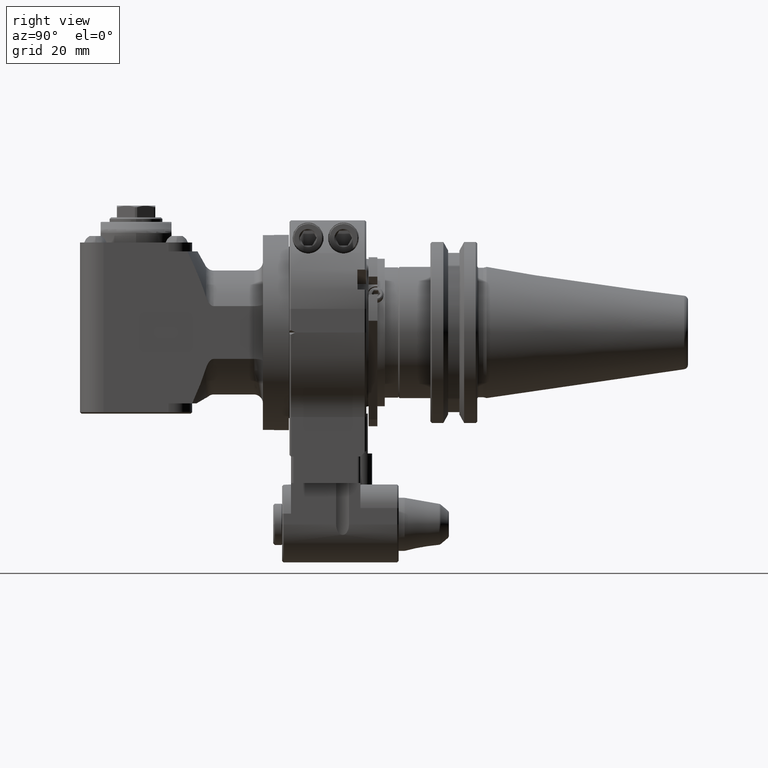
[diagram: clean part render]
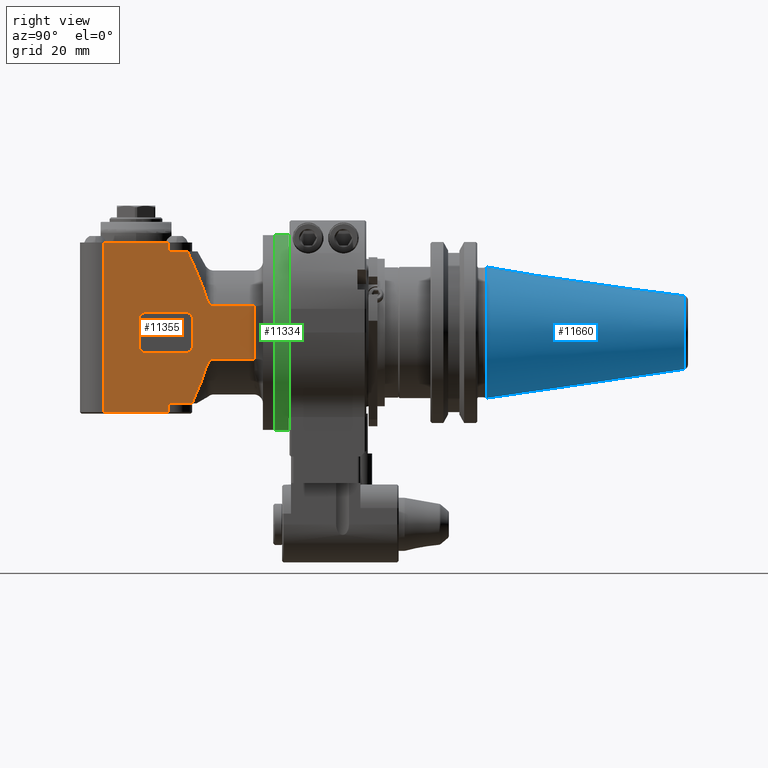
[diagram: same view with three faces highlighted in distinct colors, each labeled with its STEP entity id]
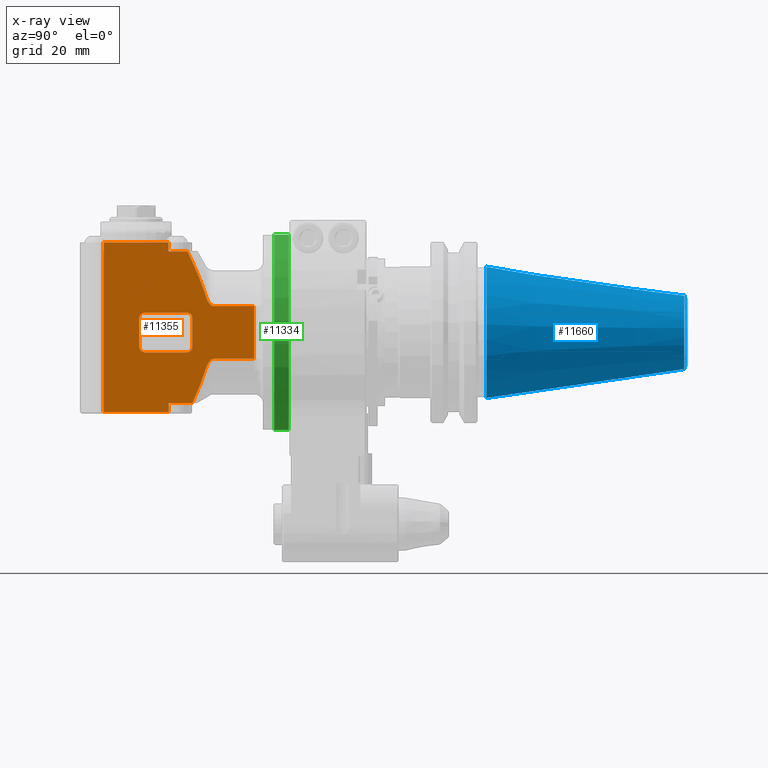
[diagram: x-ray of the same camera — body ghosted, the three highlighted faces saturated]
A machine part, right view with three faces highlighted in distinct colors.
The next image is the same camera in x-ray (body ghosted, the three faces saturated) — at least one of them is partly hidden behind the body in this view.
Their STEP definitions:

[orange] entity #11355 — the highlighted planar face has unit normal (-1, -0, 0).
#65=(
BOUNDED_CURVE()
B_SPLINE_CURVE(2,(#17212,#17213,#17214),.UNSPECIFIED.,.F.,.F.)
B_SPLINE_CURVE_WITH_KNOTS((3,3),(-5.74068599575197,-3.54168507925166),
 .UNSPECIFIED.)
CURVE()
GEOMETRIC_REPRESENTATION_ITEM()
RATIONAL_B_SPLINE_CURVE((2.49045371258984,2.33772534604886,2.08330739058124))
REPRESENTATION_ITEM('')
);
#71=(
BOUNDED_CURVE()
B_SPLINE_CURVE(2,(#17345,#17346,#17347),.UNSPECIFIED.,.F.,.F.)
B_SPLINE_CURVE_WITH_KNOTS((3,3),(3.07783197508195,5.74068599569763),
 .UNSPECIFIED.)
CURVE()
GEOMETRIC_REPRESENTATION_ITEM()
RATIONAL_B_SPLINE_CURVE((1.97144983679135,2.30550911257755,2.49045371258242))
REPRESENTATION_ITEM('')
);
#335=B_SPLINE_CURVE_WITH_KNOTS('',3,(#17200,#17201,#17202,#17203,#17204,
#17205,#17206,#17207,#17208,#17209),.UNSPECIFIED.,.F.,.F.,(4,2,2,2,4),(1.21822923817492,
1.25791885743226,1.30468817565442,1.44645855178459,1.62094865927488),
 .UNSPECIFIED.);
#339=B_SPLINE_CURVE_WITH_KNOTS('',3,(#17335,#17336,#17337,#17338,#17339,
#17340,#17341,#17342,#17343,#17344),.UNSPECIFIED.,.F.,.F.,(4,2,2,2,4),(-1.62094865929859,
-1.44645855178459,-1.30468817565442,-1.25791885743226,-1.21822923817492),
 .UNSPECIFIED.);
#476=LINE('',#17135,#1353);
#478=LINE('',#17172,#1355);
#492=LINE('',#17293,#1369);
#496=LINE('',#17315,#1373);
#497=LINE('',#17320,#1374);
#498=LINE('',#17326,#1375);
#499=LINE('',#17328,#1376);
#500=LINE('',#17330,#1377);
#501=LINE('',#17331,#1378);
#502=LINE('',#17333,#1379);
#503=LINE('',#17350,#1380);
#504=LINE('',#17354,#1381);
#505=LINE('',#17358,#1382);
#506=LINE('',#17362,#1383);
#1353=VECTOR('',#13540,17.88854382);
#1355=VECTOR('',#13550,13.69059892324);
#1369=VECTOR('',#13592,22.);
#1373=VECTOR('',#13614,3.);
#1374=VECTOR('',#13621,6.403605843049);
#1375=VECTOR('',#13624,57.5);
#1376=VECTOR('',#13625,22.);
#1377=VECTOR('',#13626,3.);
#1378=VECTOR('',#13627,8.028751066423);
#1379=VECTOR('',#13628,13.69059892324);
#1380=VECTOR('',#13629,9.5);
#1381=VECTOR('',#13632,14.);
#1382=VECTOR('',#13635,9.5);
#1383=VECTOR('',#13638,14.);
#2424=FACE_BOUND('',#3307,.T.);
#2569=FACE_OUTER_BOUND('',#3306,.T.);
#3306=EDGE_LOOP('',(#7691,#7692,#7693,#7694,#7695,#7696,#7697,#7698,#7699,
#7700,#7701,#7702,#7703,#7704));
#3307=EDGE_LOOP('',(#7705,#7706,#7707,#7708,#7709,#7710,#7711,#7712));
#4162=CIRCLE('',#12187,2.);
#4163=CIRCLE('',#12188,2.);
#4164=CIRCLE('',#12189,2.);
#4165=CIRCLE('',#12190,2.);
#4774=VERTEX_POINT('',#17119);
#4775=VERTEX_POINT('',#17134);
#4778=VERTEX_POINT('',#17169);
#4779=VERTEX_POINT('',#17174);
#4783=VERTEX_POINT('',#17211);
#4803=VERTEX_POINT('',#17290);
#4804=VERTEX_POINT('',#17292);
#4813=VERTEX_POINT('',#17314);
#4814=VERTEX_POINT('',#17319);
#4815=VERTEX_POINT('',#17325);
#4816=VERTEX_POINT('',#17327);
#4817=VERTEX_POINT('',#17329);
#4818=VERTEX_POINT('',#17332);
#4819=VERTEX_POINT('',#17334);
#4820=VERTEX_POINT('',#17348);
#4821=VERTEX_POINT('',#17349);
#4822=VERTEX_POINT('',#17351);
#4823=VERTEX_POINT('',#17353);
#4824=VERTEX_POINT('',#17355);
#4825=VERTEX_POINT('',#17357);
#4826=VERTEX_POINT('',#17359);
#4827=VERTEX_POINT('',#17361);
#5899=EDGE_CURVE('',#4774,#4775,#476,.T.);
#5905=EDGE_CURVE('',#4775,#4778,#478,.T.);
#5910=EDGE_CURVE('',#4778,#4779,#335,.T.);
#5911=EDGE_CURVE('',#4779,#4783,#65,.T.);
#5937=EDGE_CURVE('',#4803,#4804,#492,.T.);
#5948=EDGE_CURVE('',#4804,#4813,#496,.T.);
#5951=EDGE_CURVE('',#4814,#4813,#497,.T.);
#5953=EDGE_CURVE('',#4803,#4815,#498,.T.);
#5954=EDGE_CURVE('',#4815,#4816,#499,.T.);
#5955=EDGE_CURVE('',#4817,#4816,#500,.T.);
#5956=EDGE_CURVE('',#4817,#4783,#501,.T.);
#5957=EDGE_CURVE('',#4818,#4774,#502,.T.);
#5958=EDGE_CURVE('',#4819,#4818,#339,.T.);
#5959=EDGE_CURVE('',#4814,#4819,#71,.T.);
#5960=EDGE_CURVE('',#4820,#4821,#503,.T.);
#5961=EDGE_CURVE('',#4821,#4822,#4162,.T.);
#5962=EDGE_CURVE('',#4822,#4823,#504,.T.);
#5963=EDGE_CURVE('',#4823,#4824,#4163,.T.);
#5964=EDGE_CURVE('',#4824,#4825,#505,.T.);
#5965=EDGE_CURVE('',#4825,#4826,#4164,.T.);
#5966=EDGE_CURVE('',#4826,#4827,#506,.T.);
#5967=EDGE_CURVE('',#4827,#4820,#4165,.T.);
#7691=ORIENTED_EDGE('',*,*,#5953,.T.);
#7692=ORIENTED_EDGE('',*,*,#5954,.T.);
#7693=ORIENTED_EDGE('',*,*,#5955,.F.);
#7694=ORIENTED_EDGE('',*,*,#5956,.T.);
#7695=ORIENTED_EDGE('',*,*,#5911,.F.);
#7696=ORIENTED_EDGE('',*,*,#5910,.F.);
#7697=ORIENTED_EDGE('',*,*,#5905,.F.);
#7698=ORIENTED_EDGE('',*,*,#5899,.F.);
#7699=ORIENTED_EDGE('',*,*,#5957,.F.);
#7700=ORIENTED_EDGE('',*,*,#5958,.F.);
#7701=ORIENTED_EDGE('',*,*,#5959,.F.);
#7702=ORIENTED_EDGE('',*,*,#5951,.T.);
#7703=ORIENTED_EDGE('',*,*,#5948,.F.);
#7704=ORIENTED_EDGE('',*,*,#5937,.F.);
#7705=ORIENTED_EDGE('',*,*,#5960,.T.);
#7706=ORIENTED_EDGE('',*,*,#5961,.T.);
#7707=ORIENTED_EDGE('',*,*,#5962,.T.);
#7708=ORIENTED_EDGE('',*,*,#5963,.T.);
#7709=ORIENTED_EDGE('',*,*,#5964,.T.);
#7710=ORIENTED_EDGE('',*,*,#5965,.T.);
#7711=ORIENTED_EDGE('',*,*,#5966,.T.);
#7712=ORIENTED_EDGE('',*,*,#5967,.T.);
#10986=PLANE('',#12186);
#11355=ADVANCED_FACE('',(#2569,#2424),#10986,.F.);
#12186=AXIS2_PLACEMENT_3D('',#17324,#13622,#13623);
#12187=AXIS2_PLACEMENT_3D('',#17352,#13630,#13631);
#12188=AXIS2_PLACEMENT_3D('',#17356,#13633,#13634);
#12189=AXIS2_PLACEMENT_3D('',#17360,#13636,#13637);
#12190=AXIS2_PLACEMENT_3D('',#17363,#13639,#13640);
#13540=DIRECTION('',(0.,1.,0.));
#13550=DIRECTION('',(1.,0.,0.));
#13592=DIRECTION('',(-1.,0.,0.));
#13614=DIRECTION('',(0.,1.,0.));
#13621=DIRECTION('',(1.,-1.032758210792E-11,-7.534169488349E-13));
#13622=DIRECTION('center_axis',(0.,0.,-1.));
#13623=DIRECTION('ref_axis',(-1.,0.,0.));
#13624=DIRECTION('',(0.,1.,0.));
#13625=DIRECTION('',(-1.,0.,0.));
#13626=DIRECTION('',(0.,1.,0.));
#13627=DIRECTION('',(-1.,3.893990499244E-14,2.168244709806E-14));
#13628=DIRECTION('',(-1.,0.,0.));
#13629=DIRECTION('',(0.,1.,0.));
#13630=DIRECTION('center_axis',(0.,0.,-1.));
#13631=DIRECTION('ref_axis',(-1.,0.,0.));
#13632=DIRECTION('',(1.,0.,0.));
#13633=DIRECTION('center_axis',(0.,0.,-1.));
#13634=DIRECTION('ref_axis',(0.,1.,0.));
#13635=DIRECTION('',(0.,-1.,0.));
#13636=DIRECTION('center_axis',(0.,0.,-1.));
#13637=DIRECTION('ref_axis',(1.,0.,0.));
#13638=DIRECTION('',(-1.,0.,0.));
#13639=DIRECTION('center_axis',(0.,0.,-1.));
#13640=DIRECTION('ref_axis',(0.,-1.,0.));
#17119=CARTESIAN_POINT('',(68.,-8.944271909999,19.));
#17134=CARTESIAN_POINT('',(68.,8.944271909999,19.));
#17135=CARTESIAN_POINT('',(68.,-8.944271909999,19.));
#17169=CARTESIAN_POINT('',(81.69059892324,8.944271909999,19.));
#17172=CARTESIAN_POINT('',(68.,8.944271909999,19.));
#17174=CARTESIAN_POINT('',(84.28867513459,12.05197079319,19.));
#17200=CARTESIAN_POINT('Ctrl Pts',(81.69059892324,8.94427190999917,19.));
#17201=CARTESIAN_POINT('Ctrl Pts',(81.8228976540978,8.94427190999917,19.));
#17202=CARTESIAN_POINT('Ctrl Pts',(81.9794409816165,8.97069993750851,19.));
#17203=CARTESIAN_POINT('Ctrl Pts',(82.2534735234464,9.05993762335215,19.));
#17204=CARTESIAN_POINT('Ctrl Pts',(82.4193453376069,9.14645032356756,19.));
#17205=CARTESIAN_POINT('Ctrl Pts',(82.93846489548,9.50068746892363,19.));
#17206=CARTESIAN_POINT('Ctrl Pts',(83.2900811596712,9.94560030929319,19.));
#17207=CARTESIAN_POINT('Ctrl Pts',(83.8407462773402,10.8445491215566,19.));
#17208=CARTESIAN_POINT('Ctrl Pts',(84.1087278633753,11.4700949332153,19.));
#17209=CARTESIAN_POINT('Ctrl Pts',(84.2886751345919,12.0519707931894,19.));
#17211=CARTESIAN_POINT('',(88.97124893358,24.,19.));
#17212=CARTESIAN_POINT('Ctrl Pts',(84.2886751345991,12.051970793187,19.));
#17213=CARTESIAN_POINT('Ctrl Pts',(85.8540331835677,17.1136983467928,19.));
#17214=CARTESIAN_POINT('Ctrl Pts',(88.9712489335828,23.9999999999987,19.));
#17290=CARTESIAN_POINT('',(119.,-30.5,19.));
#17292=CARTESIAN_POINT('',(97.,-30.5,19.));
#17293=CARTESIAN_POINT('',(119.,-30.5,19.));
#17314=CARTESIAN_POINT('',(97.,-27.5,19.));
#17315=CARTESIAN_POINT('',(97.,-30.5,19.));
#17319=CARTESIAN_POINT('',(90.59639415695,-27.49999999993,19.));
#17320=CARTESIAN_POINT('',(90.59639415695,-27.49999999993,19.));
#17324=CARTESIAN_POINT('Origin',(131.25,-24.7499976,19.));
#17325=CARTESIAN_POINT('',(119.,27.,19.));
#17326=CARTESIAN_POINT('',(119.,-30.5,19.));
#17327=CARTESIAN_POINT('',(97.,27.,19.));
#17328=CARTESIAN_POINT('',(119.,27.,19.));
#17329=CARTESIAN_POINT('',(97.,24.,19.));
#17330=CARTESIAN_POINT('',(97.,24.,19.));
#17331=CARTESIAN_POINT('',(97.,24.,19.));
#17332=CARTESIAN_POINT('',(81.69059892324,-8.944271909999,19.));
#17333=CARTESIAN_POINT('',(81.69059892324,-8.944271909999,19.));
#17334=CARTESIAN_POINT('',(84.28867513459,-12.05197079345,18.99999999984));
#17335=CARTESIAN_POINT('Ctrl Pts',(84.2886751346653,-12.0519707934267,19.));
#17336=CARTESIAN_POINT('Ctrl Pts',(84.108727863446,-11.4700949333861,19.));
#17337=CARTESIAN_POINT('Ctrl Pts',(83.8407462773815,-10.844549121624,19.));
#17338=CARTESIAN_POINT('Ctrl Pts',(83.2900811596712,-9.94560030929319,19.));
#17339=CARTESIAN_POINT('Ctrl Pts',(82.93846489548,-9.50068746892363,19.));
#17340=CARTESIAN_POINT('Ctrl Pts',(82.4193453376069,-9.14645032356756,19.));
#17341=CARTESIAN_POINT('Ctrl Pts',(82.2534735234464,-9.05993762335215,19.));
#17342=CARTESIAN_POINT('Ctrl Pts',(81.9794409816165,-8.97069993750851,19.));
#17343=CARTESIAN_POINT('Ctrl Pts',(81.8228976540978,-8.94427190999917,19.));
#17344=CARTESIAN_POINT('Ctrl Pts',(81.69059892324,-8.94427190999917,19.));
#17345=CARTESIAN_POINT('Ctrl Pts',(90.596394156983,-27.4999999999143,19.));
#17346=CARTESIAN_POINT('Ctrl Pts',(86.2107145148859,-18.2670598564341,19.));
#17347=CARTESIAN_POINT('Ctrl Pts',(84.2886751346661,-12.0519707934263,19.));
#17348=CARTESIAN_POINT('',(88.90026377099,-4.75,19.));
#17349=CARTESIAN_POINT('',(88.90026377099,4.75,19.));
#17350=CARTESIAN_POINT('',(88.90026377099,-4.75,19.));
#17351=CARTESIAN_POINT('',(90.90026377099,6.75,19.));
#17352=CARTESIAN_POINT('Origin',(90.90026377099,4.75,19.));
#17353=CARTESIAN_POINT('',(104.900263771,6.75,19.));
#17354=CARTESIAN_POINT('',(90.90026377099,6.75,19.));
#17355=CARTESIAN_POINT('',(106.900263771,4.75,19.));
#17356=CARTESIAN_POINT('Origin',(104.900263771,4.75,19.));
#17357=CARTESIAN_POINT('',(106.900263771,-4.75,19.));
#17358=CARTESIAN_POINT('',(106.900263771,4.75,19.));
#17359=CARTESIAN_POINT('',(104.900263771,-6.75,19.));
#17360=CARTESIAN_POINT('Origin',(104.900263771,-4.75,19.));
#17361=CARTESIAN_POINT('',(90.90026377099,-6.75,19.));
#17362=CARTESIAN_POINT('',(104.900263771,-6.75,19.));
#17363=CARTESIAN_POINT('Origin',(90.90026377099,-4.75,19.));

[blue] entity #11660 — the highlighted conical surface has half-angle 8.297 deg.
#233=CONICAL_SURFACE('',#12718,17.34203190906,0.144812411498922);
#899=LINE('',#19372,#1776);
#1776=VECTOR('',#15089,17.34203190906);
#2874=FACE_OUTER_BOUND('',#3655,.T.);
#3655=EDGE_LOOP('',(#9154,#9155,#9156,#9157,#9158));
#4389=CIRCLE('',#12717,22.225);
#4390=CIRCLE('',#12719,12.45906381812);
#4391=CIRCLE('',#12720,12.45906381812);
#5280=VERTEX_POINT('',#19367);
#5281=VERTEX_POINT('',#19371);
#5282=VERTEX_POINT('',#19373);
#6669=EDGE_CURVE('',#5280,#5280,#4389,.T.);
#6671=EDGE_CURVE('',#5280,#5281,#899,.T.);
#6672=EDGE_CURVE('',#5282,#5281,#4390,.T.);
#6673=EDGE_CURVE('',#5281,#5282,#4391,.T.);
#9154=ORIENTED_EDGE('',*,*,#6669,.F.);
#9155=ORIENTED_EDGE('',*,*,#6671,.T.);
#9156=ORIENTED_EDGE('',*,*,#6672,.F.);
#9157=ORIENTED_EDGE('',*,*,#6673,.F.);
#9158=ORIENTED_EDGE('',*,*,#6671,.F.);
#11660=ADVANCED_FACE('',(#2874),#233,.T.);
#12717=AXIS2_PLACEMENT_3D('',#19368,#15084,#15085);
#12718=AXIS2_PLACEMENT_3D('',#19370,#15087,#15088);
#12719=AXIS2_PLACEMENT_3D('',#19374,#15090,#15091);
#12720=AXIS2_PLACEMENT_3D('',#19375,#15092,#15093);
#15084=DIRECTION('center_axis',(0.,-1.,0.));
#15085=DIRECTION('ref_axis',(0.,0.,-1.));
#15087=DIRECTION('center_axis',(0.,-1.,0.));
#15088=DIRECTION('ref_axis',(0.,0.,1.));
#15089=DIRECTION('',(-1.76724869581176E-17,0.98953299358046,0.144306807239621));
#15090=DIRECTION('center_axis',(0.,1.,0.));
#15091=DIRECTION('ref_axis',(0.,0.,-1.));
#15092=DIRECTION('center_axis',(0.,1.,0.));
#15093=DIRECTION('ref_axis',(0.,0.,-1.));
#19367=CARTESIAN_POINT('',(-2.72177751110459E-15,66.8000000446609,-22.2249999999967));
#19368=CARTESIAN_POINT('Origin',(0.,66.80000004466,0.));
#19370=CARTESIAN_POINT('Origin',(0.,100.28323015009,0.));
#19371=CARTESIAN_POINT('',(0.,133.76646025556,-12.45906381812));
#19372=CARTESIAN_POINT('',(2.12378638681416E-15,100.28323015009,-17.34203190906));
#19373=CARTESIAN_POINT('',(-1.52579526252333E-15,133.76646025556,12.45906381812));
#19374=CARTESIAN_POINT('Origin',(0.,133.76646025556,0.));
#19375=CARTESIAN_POINT('Origin',(0.,133.76646025556,0.));

[green] entity #11334 — the highlighted cylindrical surface (bore or boss wall) has radius 33.1 mm, axis along (-0, 1, 0).
#470=LINE('',#17088,#1347);
#1347=VECTOR('',#13502,33.1);
#2224=CYLINDRICAL_SURFACE('',#12139,33.1);
#2548=FACE_OUTER_BOUND('',#3276,.T.);
#3276=EDGE_LOOP('',(#7588,#7589,#7590,#7591));
#4134=CIRCLE('',#12137,33.1);
#4136=CIRCLE('',#12140,33.1);
#4762=VERTEX_POINT('',#17082);
#4764=VERTEX_POINT('',#17087);
#5882=EDGE_CURVE('',#4762,#4762,#4134,.T.);
#5884=EDGE_CURVE('',#4762,#4764,#470,.T.);
#5885=EDGE_CURVE('',#4764,#4764,#4136,.T.);
#7588=ORIENTED_EDGE('',*,*,#5882,.F.);
#7589=ORIENTED_EDGE('',*,*,#5884,.T.);
#7590=ORIENTED_EDGE('',*,*,#5885,.T.);
#7591=ORIENTED_EDGE('',*,*,#5884,.F.);
#11334=ADVANCED_FACE('',(#2548),#2224,.T.);
#12137=AXIS2_PLACEMENT_3D('',#17083,#13496,#13497);
#12139=AXIS2_PLACEMENT_3D('',#17086,#13500,#13501);
#12140=AXIS2_PLACEMENT_3D('',#17089,#13503,#13504);
#13496=DIRECTION('center_axis',(-1.,0.,0.));
#13497=DIRECTION('ref_axis',(0.,-1.,0.));
#13500=DIRECTION('center_axis',(-1.,0.,0.));
#13501=DIRECTION('ref_axis',(0.,-1.,0.));
#13502=DIRECTION('',(1.,0.,0.));
#13503=DIRECTION('center_axis',(-1.,0.,0.));
#13504=DIRECTION('ref_axis',(0.,-1.,0.));
#17082=CARTESIAN_POINT('',(56.2,33.1,0.));
#17083=CARTESIAN_POINT('Origin',(56.2,0.,0.));
#17086=CARTESIAN_POINT('Origin',(56.2,0.,0.));
#17087=CARTESIAN_POINT('',(61.2,33.1,0.));
#17088=CARTESIAN_POINT('',(56.2,33.1,-4.05358090517774E-15));
#17089=CARTESIAN_POINT('Origin',(61.2,0.,0.));